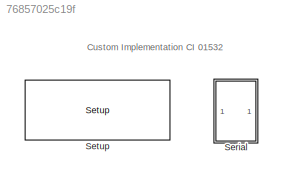
MODEL slx_76857025c19f
KIND model
CONFIG AbsTol = auto
CONFIG FixedStep = auto
CONFIG MaxStep = auto
CONFIG MinStep = auto
CONFIG PreLoadFcn = if ~exist('Ts', 'var')\nTs = 0.001;\nend\nif ~exist('Tpwm', 'var')\nTpwm = 0.005;\nend\nif ~exist('FPGA_Frequency', 'var')\nFPGA_Frequency = 75000000;\nend\n
CONFIG RelTol = 1e-3
CONFIG SampleTimeConstraint = Unconstrained
CONFIG Solver = VariableStepAuto
CONFIG SolverMode = SingleTasking
CONFIG SolverName = VariableStepAuto
CONFIG StartTime = 0.0
CONFIG StopTime = 10.0
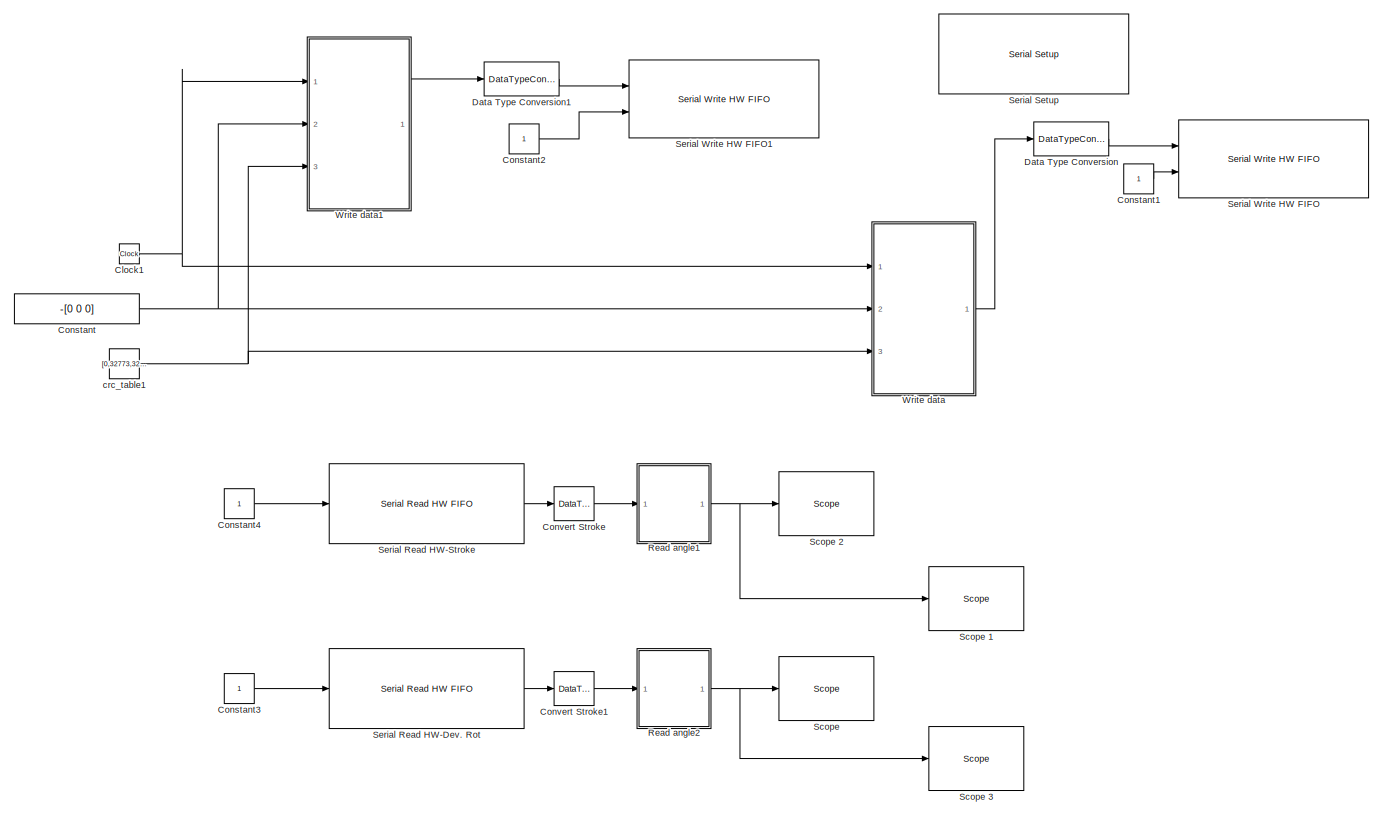
[diagram: Serial - part 1/1, most of the canvas]
BLOCK [SubSystem] Serial
  Ports = []
  RequestExecContextInheritance = off
  Variant = off
BLOCK [Clock] Serial/Clock1
BLOCK [Constant] Serial/Constant
  Value = -[0 0 0]
BLOCK [Constant] Serial/Constant1
  OutDataTypeStr = Inherit: Inherit via back propagation
BLOCK [Constant] Serial/Constant2
  OutDataTypeStr = Inherit: Inherit via back propagation
BLOCK [Constant] Serial/Constant3
  OutDataTypeStr = Inherit: Inherit via back propagation
BLOCK [Constant] Serial/Constant4
  OutDataTypeStr = Inherit: Inherit via back propagation
BLOCK [DataTypeConversion] Serial/Convert Stroke
  RndMeth = Floor
  SaturateOnIntegerOverflow = off
BLOCK [DataTypeConversion] Serial/Convert Stroke1
  RndMeth = Floor
  SaturateOnIntegerOverflow = off
BLOCK [DataTypeConversion] Serial/Data Type Conversion
  RndMeth = Floor
  SaturateOnIntegerOverflow = off
BLOCK [DataTypeConversion] Serial/Data Type Conversion1
  RndMeth = Floor
  SaturateOnIntegerOverflow = off
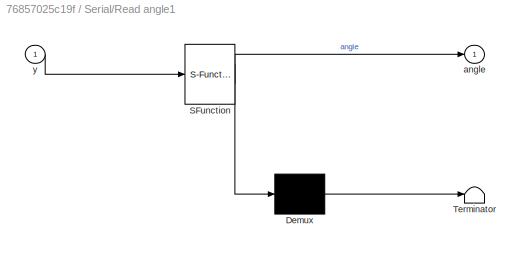
BLOCK [SubSystem] Serial/Read angle1
  ErrorFcn = Stateflow.Translate.translate
  PermitHierarchicalResolution = ExplicitOnly
  Ports = [1, 1]
  RequestExecContextInheritance = off
  SFBlockType = MATLAB Function
  TreatAsAtomicUnit = on
  Variant = off
BLOCK [Demux] Serial/Read angle1/ Demux 
  Outputs = 1
  Ports = [1, 1]
BLOCK [S-Function] Serial/Read angle1/ SFunction 
  EnableBusSupport = on
  FunctionName = sf_sfun
  PortCounts = [1 2]
  Ports = [1, 2]
  SFunctionDeploymentMode = off
  Tag = Stateflow S-Function setHoming 10
BLOCK [Terminator] Serial/Read angle1/ Terminator 
BLOCK [Outport] Serial/Read angle1/angle
  IconDisplay = Port number
BLOCK [Inport] Serial/Read angle1/y
  IconDisplay = Port number
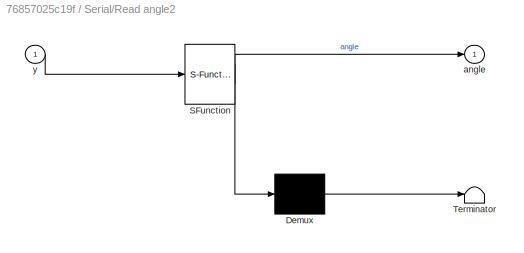
BLOCK [SubSystem] Serial/Read angle2
  ErrorFcn = Stateflow.Translate.translate
  PermitHierarchicalResolution = ExplicitOnly
  Ports = [1, 1]
  RequestExecContextInheritance = off
  SFBlockType = MATLAB Function
  TreatAsAtomicUnit = on
  Variant = off
BLOCK [Demux] Serial/Read angle2/ Demux 
  Outputs = 1
  Ports = [1, 1]
BLOCK [S-Function] Serial/Read angle2/ SFunction 
  EnableBusSupport = on
  FunctionName = sf_sfun
  PortCounts = [1 2]
  Ports = [1, 2]
  SFunctionDeploymentMode = off
  Tag = Stateflow S-Function setHoming 11
BLOCK [Terminator] Serial/Read angle2/ Terminator 
BLOCK [Outport] Serial/Read angle2/angle
  IconDisplay = Port number
BLOCK [Inport] Serial/Read angle2/y
  IconDisplay = Port number
BLOCK [Reference] Serial/Scope   REF=slrtlib/Displays and
Logging/Scope 
  Ports = [1]
  SourceBlock = slrtlib/Displays and\nLogging/Scope
  SourceType = xpcscopeblock
BLOCK [Reference] Serial/Scope 1  REF=slrtlib/Displays and
Logging/Scope 
  Ports = [1]
  SourceBlock = slrtlib/Displays and\nLogging/Scope
  SourceType = xpcscopeblock
BLOCK [Reference] Serial/Scope 2  REF=slrtlib/Displays and
Logging/Scope 
  Ports = [1]
  SourceBlock = slrtlib/Displays and\nLogging/Scope
  SourceType = xpcscopeblock
BLOCK [Reference] Serial/Scope 3  REF=slrtlib/Displays and
Logging/Scope 
  Ports = [1]
  SourceBlock = slrtlib/Displays and\nLogging/Scope
  SourceType = xpcscopeblock
BLOCK [Reference] Serial/Serial Read HW-Dev. Rot  REF=speedgoatlib_fpga/Serial/Serial Read HW FIFO
  Ports = [1, 1]
  SourceBlock = speedgoatlib_fpga/Serial/Serial Read HW FIFO
  SourceType = serialread_fpga_1
BLOCK [Reference] Serial/Serial Read HW-Stroke  REF=speedgoatlib_fpga/Serial/Serial Read HW FIFO
  Ports = [1, 1]
  SourceBlock = speedgoatlib_fpga/Serial/Serial Read HW FIFO
  SourceType = serialread_fpga_1
BLOCK [Reference] Serial/Serial Setup  REF=speedgoatlib_fpga/Serial/Serial Setup
  Ports = []
  SourceBlock = speedgoatlib_fpga/Serial/Serial Setup
  SourceType = serial_fpga_1
BLOCK [Reference] Serial/Serial Write HW FIFO  REF=speedgoatlib_fpga/Serial/Serial Write HW FIFO
  Ports = [2]
  SourceBlock = speedgoatlib_fpga/Serial/Serial Write HW FIFO
  SourceType = serialwrite_fpga_1
BLOCK [Reference] Serial/Serial Write HW FIFO1  REF=speedgoatlib_fpga/Serial/Serial Write HW FIFO
  Ports = [2]
  SourceBlock = speedgoatlib_fpga/Serial/Serial Write HW FIFO
  SourceType = serialwrite_fpga_1
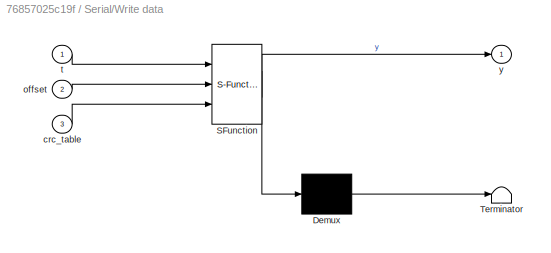
BLOCK [SubSystem] Serial/Write data
  ErrorFcn = Stateflow.Translate.translate
  PermitHierarchicalResolution = ExplicitOnly
  Ports = [3, 1]
  RequestExecContextInheritance = off
  SFBlockType = MATLAB Function
  TreatAsAtomicUnit = on
  Variant = off
BLOCK [Demux] Serial/Write data/ Demux 
  Outputs = 1
  Ports = [1, 1]
BLOCK [S-Function] Serial/Write data/ SFunction 
  EnableBusSupport = on
  FunctionName = sf_sfun
  PortCounts = [3 2]
  Ports = [3, 2]
  SFunctionDeploymentMode = off
  Tag = Stateflow S-Function setHoming 1
BLOCK [Terminator] Serial/Write data/ Terminator 
BLOCK [Inport] Serial/Write data/crc_table
  IconDisplay = Port number
  Port = 3
BLOCK [Inport] Serial/Write data/offset
  IconDisplay = Port number
  Port = 2
BLOCK [Inport] Serial/Write data/t
  IconDisplay = Port number
BLOCK [Outport] Serial/Write data/y
  IconDisplay = Port number
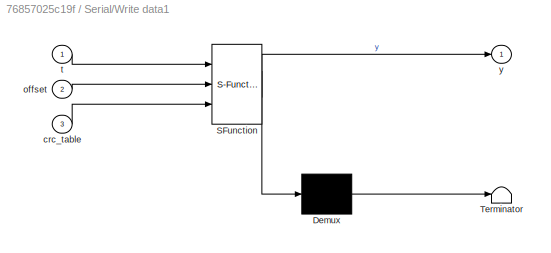
BLOCK [SubSystem] Serial/Write data1
  ErrorFcn = Stateflow.Translate.translate
  PermitHierarchicalResolution = ExplicitOnly
  Ports = [3, 1]
  RequestExecContextInheritance = off
  SFBlockType = MATLAB Function
  TreatAsAtomicUnit = on
  Variant = off
BLOCK [Demux] Serial/Write data1/ Demux 
  Outputs = 1
  Ports = [1, 1]
BLOCK [S-Function] Serial/Write data1/ SFunction 
  EnableBusSupport = on
  FunctionName = sf_sfun
  PortCounts = [3 2]
  Ports = [3, 2]
  SFunctionDeploymentMode = off
  Tag = Stateflow S-Function setHoming 2
BLOCK [Terminator] Serial/Write data1/ Terminator 
BLOCK [Inport] Serial/Write data1/crc_table
  IconDisplay = Port number
  Port = 3
BLOCK [Inport] Serial/Write data1/offset
  IconDisplay = Port number
  Port = 2
BLOCK [Inport] Serial/Write data1/t
  IconDisplay = Port number
BLOCK [Outport] Serial/Write data1/y
  IconDisplay = Port number
BLOCK [Constant] Serial/crc_table1
  OutDataTypeStr = Inherit: Inherit via back propagation
  Value = [0,32773,32783,10,32795,30,20,32785,32819,54,60,32825,40,32813,32807,34,32867,102,108,32873,120,32893,32887,114,80,32853,32863,90,32843,78,68,32833,32963,198,204,32969,216,32989,32983,210,240,33013,33023,250,33003,238,228,32993,160,32933,32943,170,32955,190,180,32945,32915,150,156,32921,136,32909,32903,130,33155,390,396,33161,408,33181,33175,402,432,33205,33215,442,33195,430,420,33185,480,33253,33...<+871ch>
BLOCK [Reference] Setup  REF=speedgoatlib_fpga/Setup/Setup
  Ports = []
  SourceBlock = speedgoatlib_fpga/Setup/Setup
  SourceType = setup_IO316-IO318, IO331
ANNOTATION (root): Custom Implementation CI 01532
NET Serial/Clock1:1 -> Serial/Write data1:1, Serial/Write data:1
LINE Serial/Constant1:1 -> Serial/Serial Write HW FIFO:2
LINE Serial/Constant2:1 -> Serial/Serial Write HW FIFO1:2
LINE Serial/Constant3:1 -> Serial/Serial Read HW-Dev. Rot:1
LINE Serial/Constant4:1 -> Serial/Serial Read HW-Stroke:1
NET Serial/Constant:1 -> Serial/Write data1:2, Serial/Write data:2
LINE Serial/Convert Stroke1:1 -> Serial/Read angle2:1
LINE Serial/Convert Stroke:1 -> Serial/Read angle1:1
LINE Serial/Data Type Conversion1:1 -> Serial/Serial Write HW FIFO1:1
LINE Serial/Data Type Conversion:1 -> Serial/Serial Write HW FIFO:1
NET Serial/Read angle1:1 -> Serial/Scope 1:1, Serial/Scope 2:1
NET Serial/Read angle2:1 -> Serial/Scope 3:1, Serial/Scope :1
LINE Serial/Serial Read HW-Dev. Rot:1 -> Serial/Convert Stroke1:1
LINE Serial/Serial Read HW-Stroke:1 -> Serial/Convert Stroke:1
LINE Serial/Write data1:1 -> Serial/Data Type Conversion1:1
LINE Serial/Write data:1 -> Serial/Data Type Conversion:1
NET Serial/crc_table1:1 -> Serial/Write data1:3, Serial/Write data:3
note: NET lines group one-source signal fan-out (src -> all destinations, sorted); 1:1 wires keep LINE
CHART Serial/Write data states=1 transitions=1
  STATE_LABEL 'eML_blk_kernel()'
  STATE_LABEL 'SCRIPT:\nfunction y = fcn(t,offset,crc_table)\n%#codegen\n\n% do the following on BOTH scripts\n% step 1: make offset = -[0 0 0] and upload to Speedgoat\n% step 2: put robot at home position\n% step 3: read angles from Speedgoat monitor\n% step 4: make offset = -[angles from speedgoat]\n% step 5: reupload\n\nif t == 0.0     % initialization\n    y = packetMultiWrite(3,[1 2 3],[0 0 0],crc_table);\nelseif t<0.1\n...<+187ch>'
CHART Serial/Write data1 states=1 transitions=1
  STATE_LABEL 'eML_blk_kernel()'
  STATE_LABEL 'SCRIPT:\nfunction y = fcn(t,offset,crc_table)\n%#codegen\n\n% do the following on BOTH scripts\n% step 1: make offset = -[0 0 0] and upload to Speedgoat\n% step 2: put robot at home position\n% step 3: read angles from Speedgoat monitor\n% step 4: make offset = -[angles from speedgoat]\n% step 5: reupload\n\nif t == 0.0     % initialization\n    y = packetMultiWrite(3,[1 2 3],[0 0 0],crc_table);\nelseif t<0.1\n...<+193ch>'
CHART Serial/Read angle1 states=1 transitions=1
  STATE_LABEL 'eML_blk_kernel()'
  STATE_LABEL 'SCRIPT:\nfunction angle  = fcn(y)\n%#codegen\nangle = 0;\nID = 1;\nNegative_allowed = 1;\nfor i = 1:1:length(y)-5\n    if y(i) == 255 && y(i+1) == 255 && y(i+2) == 253 && y(i+4) == ID && y(i+5) == 8\n        temp = i;\n        Para = y(temp+9:temp+12);\n        angle = Position(Para,Negative_allowed);\n    end\nend\n\nend\n\nfunction angle = Position(para,Neg_allowed)\n\nswitch(Neg_allowed)\n    case 0\n        value...<+157ch>'
CHART Serial/Read angle2 states=1 transitions=1
  STATE_LABEL 'eML_blk_kernel()'
  STATE_LABEL 'SCRIPT:\nfunction angle  = fcn(y)\n%#codegen\n\nangle_2 = 0;\nangle_3 = 0;\nID = [2 3];\nfor i = 1:1:length(y)-5\n    if y(i) == 255 && y(i+1) == 255 && y(i+2) == 253 && y(i+4) == ID(1) && y(i+5) == 8\n        temp_2 = i;\n        Para_2 = y(temp_2+9:temp_2+12);\n        angle_2 = Position(Para_2);\n    elseif y(i) == 255 && y(i+1) == 255 && y(i+2) == 253 && y(i+4) == ID(2) && y(i+5) == 8\n        temp_3 = i;\n...<+237ch>'
